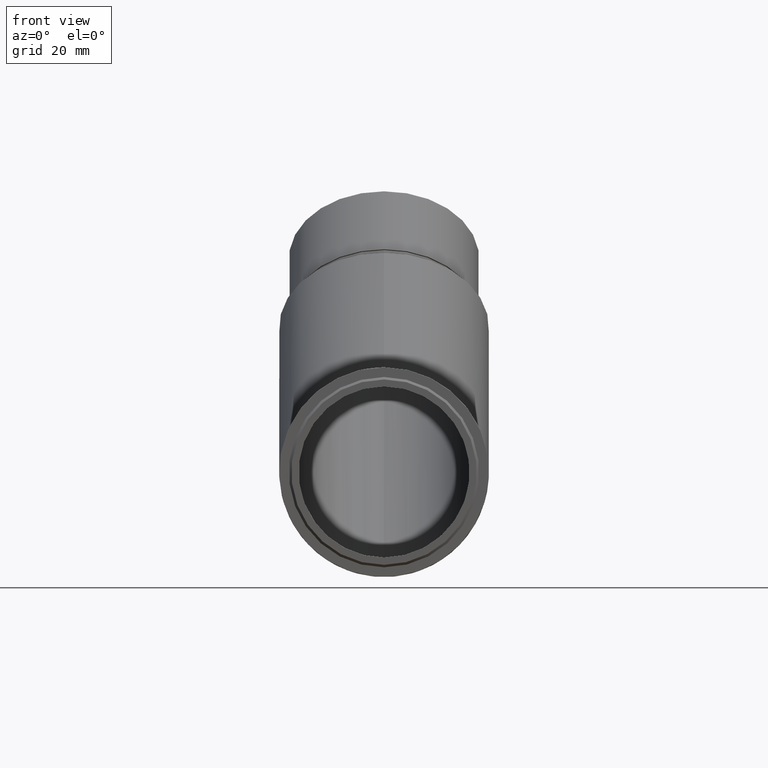
[diagram: clean part render]
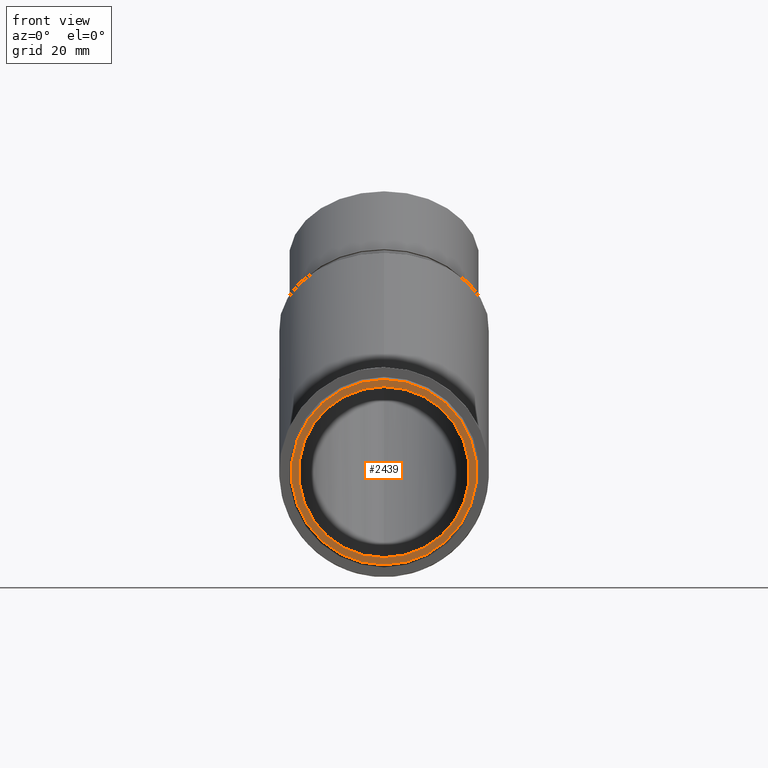
[diagram: same view with one face highlighted and labeled with its STEP entity id]
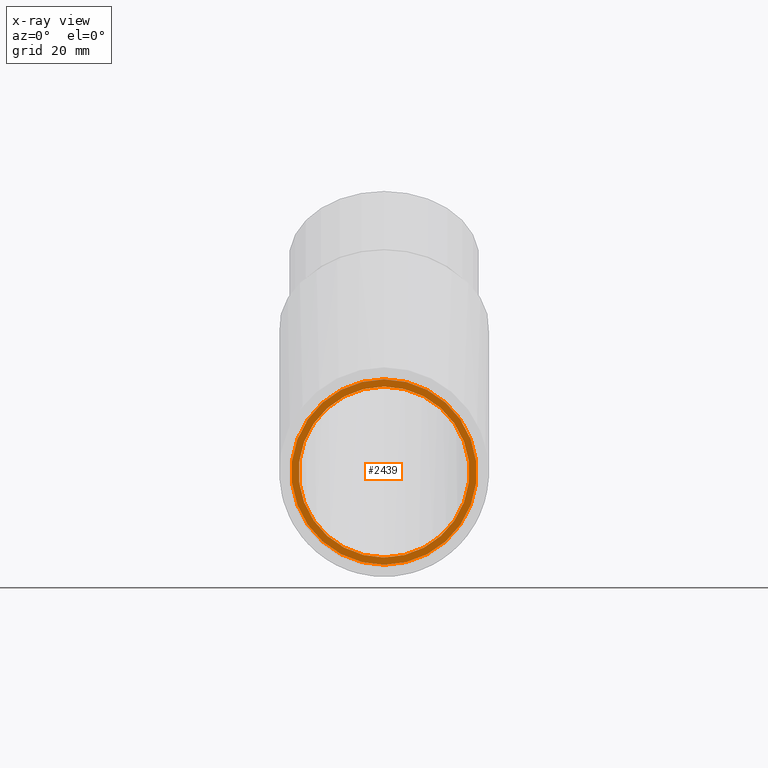
[diagram: x-ray of the same camera — body ghosted, the highlighted face saturated]
A machine part, front view. The second image highlights one B-rep face of the part: STEP entity #2439.
The next image is the same camera in x-ray: the body ghosted, the highlighted face saturated — about 0% of this face is hidden behind the body in this view.
In plain terms, the highlighted planar face has unit normal (0, -1, 0).
Its self-contained STEP definition (entity closure, byte-faithful):
#575 = DIRECTION ( 'NONE',  ( 0.0000000000000000000, 0.0000000000000000000, -1.000000000000000000 ) ) ;
#1603 = CARTESIAN_POINT ( 'NONE',  ( 0.0000000000000000000, -20.00000000000000000, 0.0000000000000000000 ) ) ;
#2026 = EDGE_CURVE ( 'NONE', #5516, #5516, #12288, .T. ) ;
#2439 = ADVANCED_FACE ( 'NONE', ( #5401, #12442 ), #3097, .T. ) ;
#3097 = PLANE ( 'NONE',  #8916 ) ;
#3291 = ORIENTED_EDGE ( 'NONE', *, *, #2026, .F. ) ;
#3944 = CARTESIAN_POINT ( 'NONE',  ( 0.0000000000000000000, -20.00000000000000000, 0.0000000000000000000 ) ) ;
#4390 = EDGE_CURVE ( 'NONE', #8039, #8039, #8382, .T. ) ;
#5401 = FACE_OUTER_BOUND ( 'NONE', #11223, .T. ) ;
#5516 = VERTEX_POINT ( 'NONE', #9202 ) ;
#5996 = DIRECTION ( 'NONE',  ( 0.0000000000000000000, -1.000000000000000000, 0.0000000000000000000 ) ) ;
#7100 = AXIS2_PLACEMENT_3D ( 'NONE', #12095, #5996, #7961 ) ;
#7961 = DIRECTION ( 'NONE',  ( 0.0000000000000000000, 0.0000000000000000000, -1.000000000000000000 ) ) ;
#8039 = VERTEX_POINT ( 'NONE', #11139 ) ;
#8135 = AXIS2_PLACEMENT_3D ( 'NONE', #1603, #10785, #575 ) ;
#8382 = CIRCLE ( 'NONE', #8135, 18.64999999999999900 ) ;
#8440 = EDGE_LOOP ( 'NONE', ( #3291 ) ) ;
#8836 = ORIENTED_EDGE ( 'NONE', *, *, #4390, .T. ) ;
#8916 = AXIS2_PLACEMENT_3D ( 'NONE', #3944, #10243, #11059 ) ;
#9202 = CARTESIAN_POINT ( 'NONE',  ( 0.0000000000000000000, -20.00000000000000000, -17.19999999999999900 ) ) ;
#10243 = DIRECTION ( 'NONE',  ( 0.0000000000000000000, -1.000000000000000000, 0.0000000000000000000 ) ) ;
#10785 = DIRECTION ( 'NONE',  ( 0.0000000000000000000, -1.000000000000000000, 0.0000000000000000000 ) ) ;
#11059 = DIRECTION ( 'NONE',  ( 0.0000000000000000000, -0.0000000000000000000, -1.000000000000000000 ) ) ;
#11139 = CARTESIAN_POINT ( 'NONE',  ( 0.0000000000000000000, -20.00000000000000000, -18.64999999999999900 ) ) ;
#11223 = EDGE_LOOP ( 'NONE', ( #8836 ) ) ;
#12095 = CARTESIAN_POINT ( 'NONE',  ( 0.0000000000000000000, -20.00000000000000000, 0.0000000000000000000 ) ) ;
#12288 = CIRCLE ( 'NONE', #7100, 17.19999999999999900 ) ;
#12442 = FACE_BOUND ( 'NONE', #8440, .T. ) ;